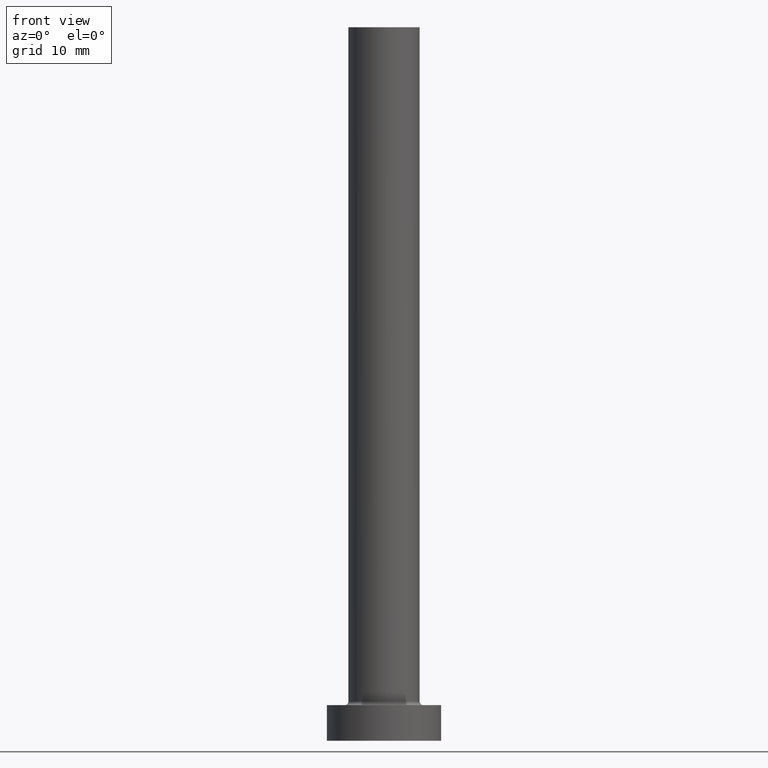
[diagram: clean part render]
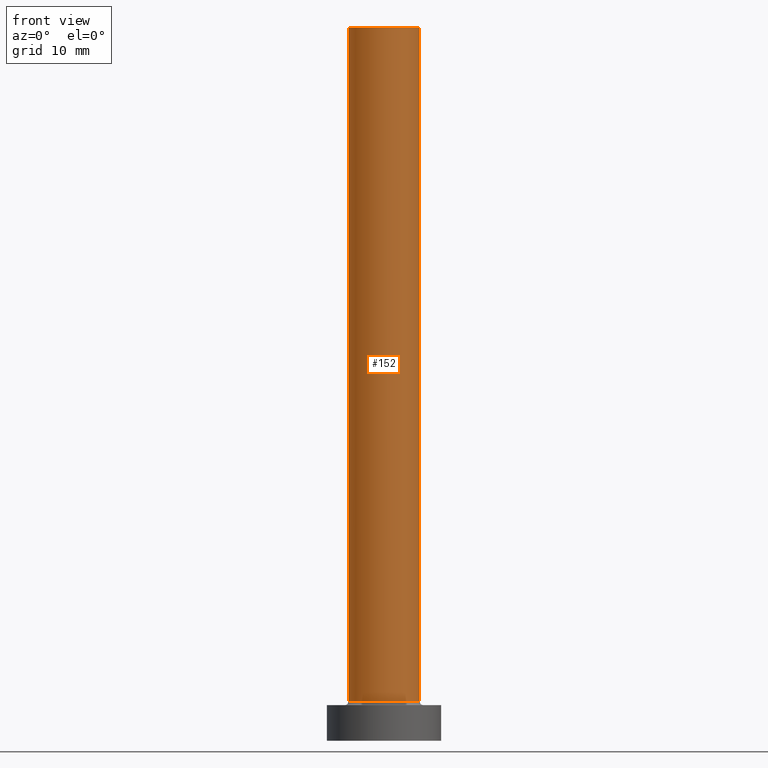
[diagram: same view with one face highlighted and labeled with its STEP entity id]
A machine part, front view. The second image highlights one B-rep face of the part: STEP entity #152.
In plain terms, the highlighted cylindrical surface (edge-blend (fillet) strip) has radius 5 mm, axis along (-0, -0, -1).
Its self-contained STEP definition (entity closure, byte-faithful):
#1 = ORIENTED_EDGE ( 'NONE', *, *, #399, .F. ) ;
#16 = CARTESIAN_POINT ( 'NONE',  ( -5.000000000000000000, 0.000000000000000000, 100.0000000000000000 ) ) ;
#24 = EDGE_CURVE ( 'NONE', #207, #406, #270, .T. ) ;
#37 = EDGE_CURVE ( 'NONE', #170, #433, #129, .T. ) ;
#39 = VECTOR ( 'NONE', #199, 1000.000000000000000 ) ;
#77 = CARTESIAN_POINT ( 'NONE',  ( 0.000000000000000000, 0.000000000000000000, 100.0000000000000000 ) ) ;
#80 = CARTESIAN_POINT ( 'NONE',  ( 5.000000000000000000, 6.123233995736766282E-16, 100.0000000000000000 ) ) ;
#88 = CARTESIAN_POINT ( 'NONE',  ( -5.000000000000000000, 0.000000000000000000, 100.0000000000000000 ) ) ;
#129 = LINE ( 'NONE', #88, #39 ) ;
#133 = EDGE_LOOP ( 'NONE', ( #415, #1, #336, #313 ) ) ;
#134 = CIRCLE ( 'NONE', #171, 5.000000000000000000 ) ;
#152 = ADVANCED_FACE ( 'NONE', ( #266 ), #368, .T. ) ;
#170 = VERTEX_POINT ( 'NONE', #16 ) ;
#171 = AXIS2_PLACEMENT_3D ( 'NONE', #358, #175, #401 ) ;
#175 = DIRECTION ( 'NONE',  ( 0.000000000000000000, 0.000000000000000000, 1.000000000000000000 ) ) ;
#179 = AXIS2_PLACEMENT_3D ( 'NONE', #412, #357, #391 ) ;
#199 = DIRECTION ( 'NONE',  ( -0.000000000000000000, -0.000000000000000000, -1.000000000000000000 ) ) ;
#207 = VERTEX_POINT ( 'NONE', #80 ) ;
#209 = AXIS2_PLACEMENT_3D ( 'NONE', #77, #298, #361 ) ;
#213 = CARTESIAN_POINT ( 'NONE',  ( 5.000000000000000000, 6.123233995736766282E-16, 5.500000000000005329 ) ) ;
#220 = EDGE_CURVE ( 'NONE', #433, #406, #441, .T. ) ;
#225 = VECTOR ( 'NONE', #236, 1000.000000000000000 ) ;
#236 = DIRECTION ( 'NONE',  ( -0.000000000000000000, -0.000000000000000000, -1.000000000000000000 ) ) ;
#266 = FACE_OUTER_BOUND ( 'NONE', #133, .T. ) ;
#270 = LINE ( 'NONE', #377, #225 ) ;
#298 = DIRECTION ( 'NONE',  ( -0.000000000000000000, -0.000000000000000000, -1.000000000000000000 ) ) ;
#313 = ORIENTED_EDGE ( 'NONE', *, *, #220, .T. ) ;
#336 = ORIENTED_EDGE ( 'NONE', *, *, #37, .T. ) ;
#357 = DIRECTION ( 'NONE',  ( 0.000000000000000000, 0.000000000000000000, 1.000000000000000000 ) ) ;
#358 = CARTESIAN_POINT ( 'NONE',  ( 0.000000000000000000, 0.000000000000000000, 100.0000000000000000 ) ) ;
#361 = DIRECTION ( 'NONE',  ( -1.000000000000000000, 0.000000000000000000, 0.000000000000000000 ) ) ;
#368 = CYLINDRICAL_SURFACE ( 'NONE', #209, 5.000000000000000000 ) ;
#377 = CARTESIAN_POINT ( 'NONE',  ( 5.000000000000000000, 6.123233995736766282E-16, 100.0000000000000000 ) ) ;
#391 = DIRECTION ( 'NONE',  ( 1.000000000000000000, 0.000000000000000000, 0.000000000000000000 ) ) ;
#399 = EDGE_CURVE ( 'NONE', #170, #207, #134, .T. ) ;
#401 = DIRECTION ( 'NONE',  ( 1.000000000000000000, 0.000000000000000000, 0.000000000000000000 ) ) ;
#406 = VERTEX_POINT ( 'NONE', #213 ) ;
#412 = CARTESIAN_POINT ( 'NONE',  ( 0.000000000000000000, 0.000000000000000000, 5.500000000000005329 ) ) ;
#415 = ORIENTED_EDGE ( 'NONE', *, *, #24, .F. ) ;
#433 = VERTEX_POINT ( 'NONE', #459 ) ;
#441 = CIRCLE ( 'NONE', #179, 5.000000000000000000 ) ;
#459 = CARTESIAN_POINT ( 'NONE',  ( -5.000000000000000000, 0.000000000000000000, 5.500000000000005329 ) ) ;